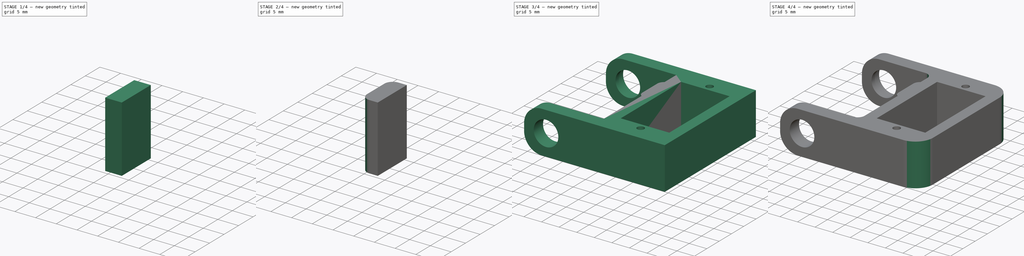
[diagram: build sequence overview — one tinted view per stage of 4, left to right]
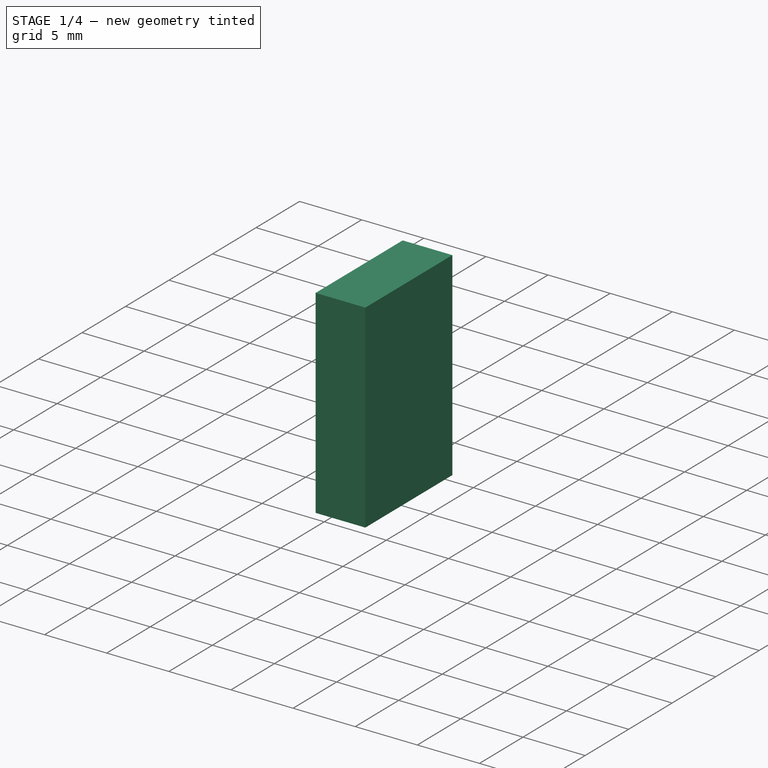
[diagram: stage 1 of 4 — iso view after this stage's code; geometry added in this stage tinted green]
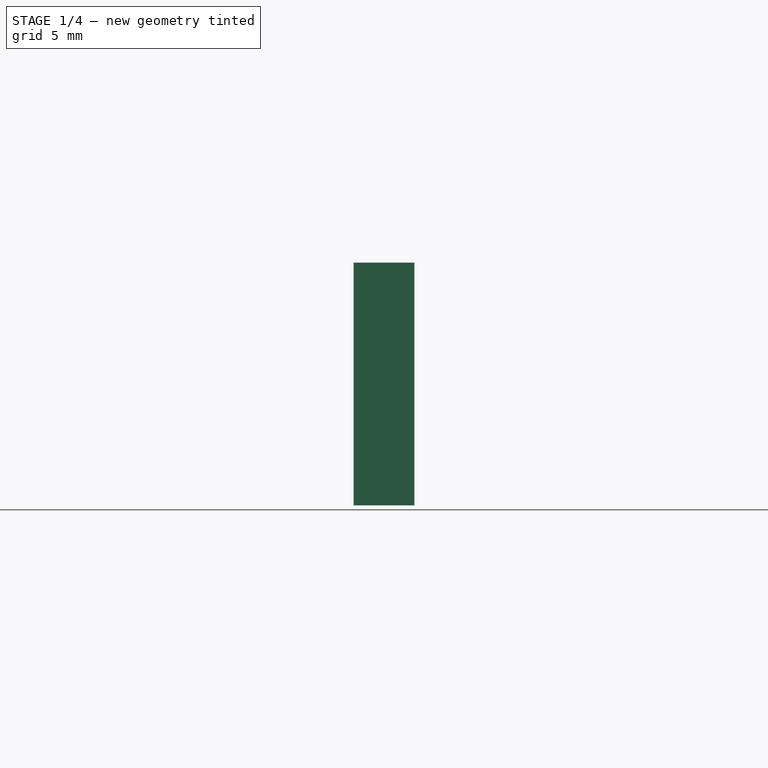
[diagram: stage 1 of 4 — front view after this stage's code; geometry added in this stage tinted green]
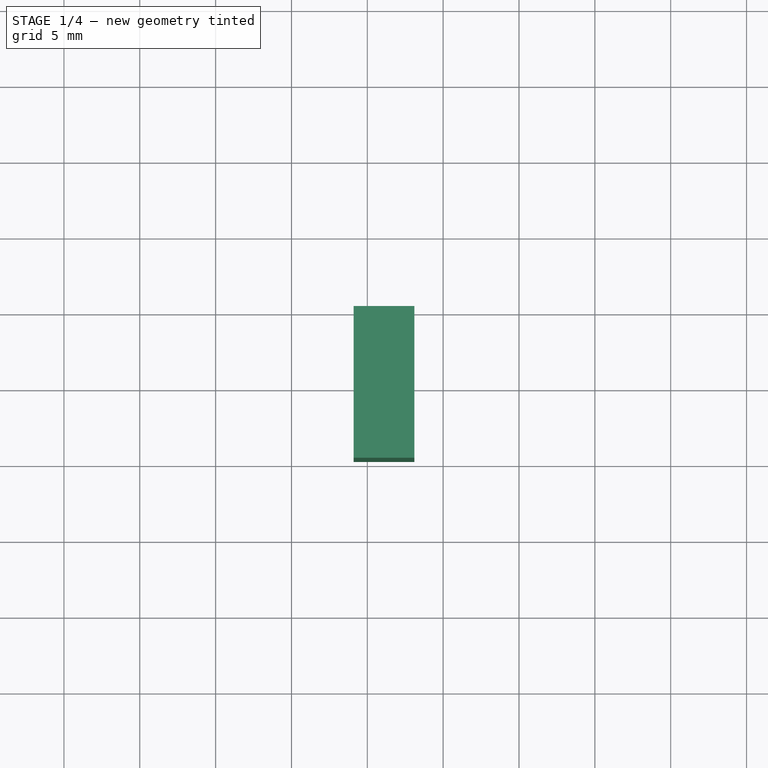
[diagram: stage 1 of 4 — top view after this stage's code; geometry added in this stage tinted green]
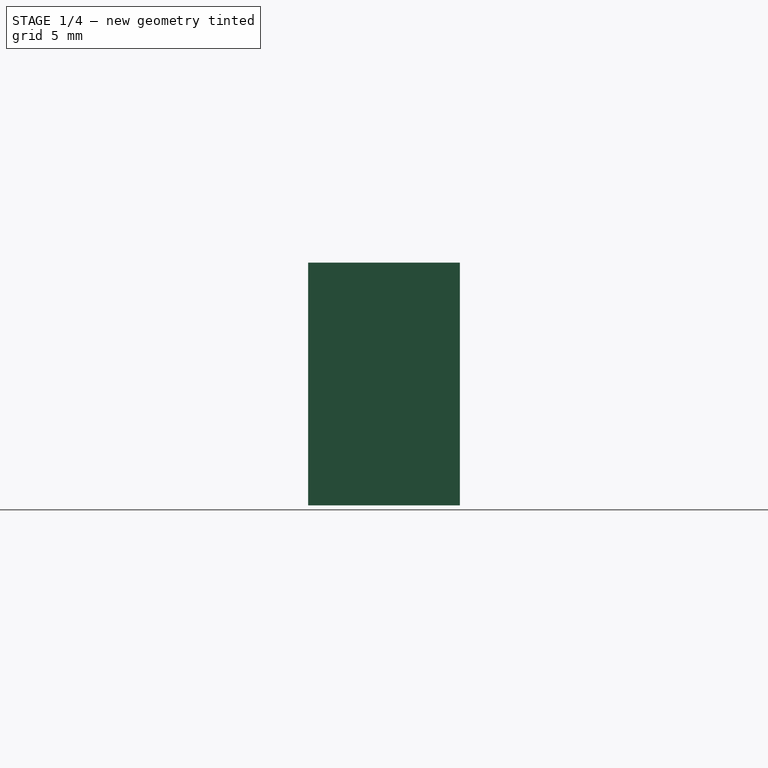
[diagram: stage 1 of 4 — right view after this stage's code; geometry added in this stage tinted green]
FCSTD DOCUMENT  (FreeCAD 0.21R33668 +26 (Git))
Label: pata-coxa
License: All rights reserved
LicenseURL: http://en.wikipedia.org/wiki/All_rights_reserved
objects: Part::Fillet×4, Sketcher::SketchObject×3, PartDesign::Pocket×2, Part::Cylinder×2, Part::Cut×2, PartDesign::Pad×1, PartDesign::Body×1, Part::Box×1, Part::MultiFuse×1, App::DocumentObjectGroup×1
note: 20 computed .brp shape members not serialized (recipe doc carries the construction recipe); baked Part::Feature solids carry a one-line shape summary decoded from their .brp

FEATURE [PartDesign::Body] Body
  Group = -> [Sketch,Pad,Sketch001,Pocket,Sketch002,Pocket001]
  Origin = -> Origin
  Tip = -> Pocket001
FEATURE [Part::Box] Box004  label="soporte-para-articulacion"
  AttacherType = Attacher::AttachEngine3D
  Height = 16
  Length = 4
  Placement = pos=(-10.9,0.3,-4) rot=(0,0,1;0rad)
  Width = 10
FEATURE [Part::Cylinder] Cylinder013  label="taladro-union-1"
  Angle = 360
  AttacherType = Attacher::AttachEngine3D
  FirstAngle = 0
  Height = 10
  Placement = pos=(-8.6,2.75,-7.9) rot=(0,0,1;0rad)
  Radius = 1
  SecondAngle = 0
FEATURE [Part::Cut] Cut003
  Base = -> Box004
  Tool = -> Cylinder013
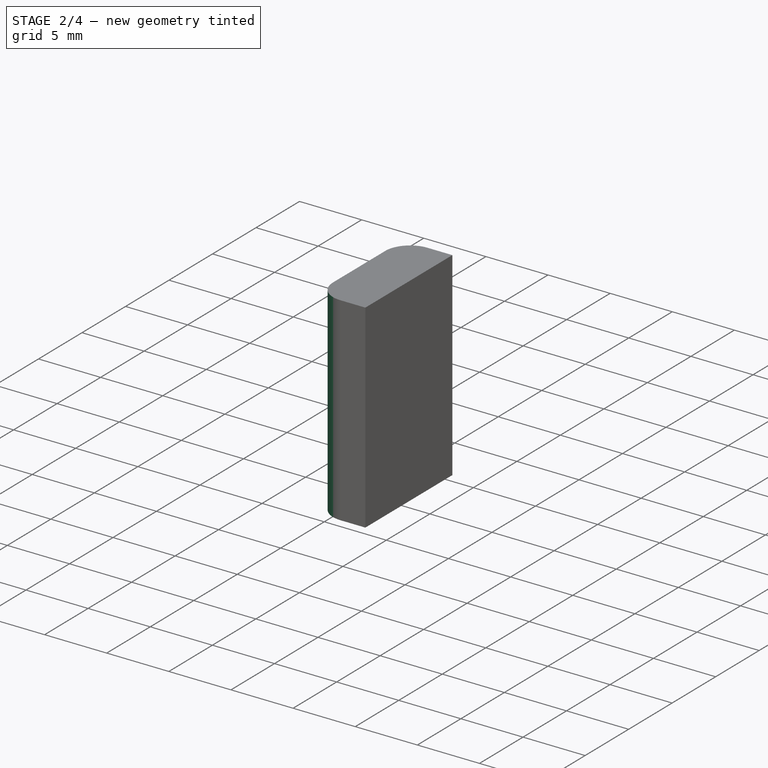
[diagram: stage 2 of 4 — iso view after this stage's code; geometry added in this stage tinted green]
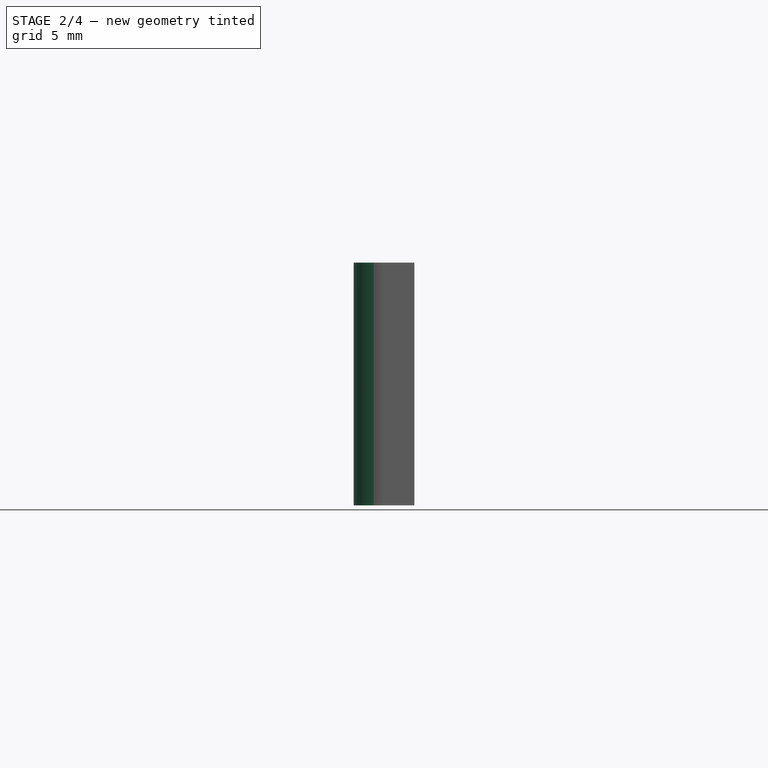
[diagram: stage 2 of 4 — front view after this stage's code; geometry added in this stage tinted green]
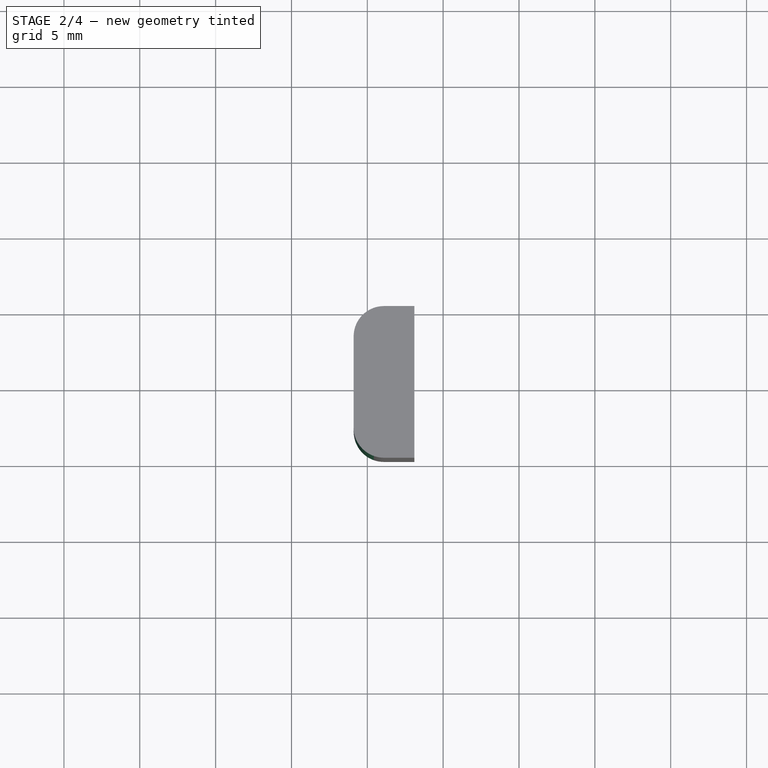
[diagram: stage 2 of 4 — top view after this stage's code; geometry added in this stage tinted green]
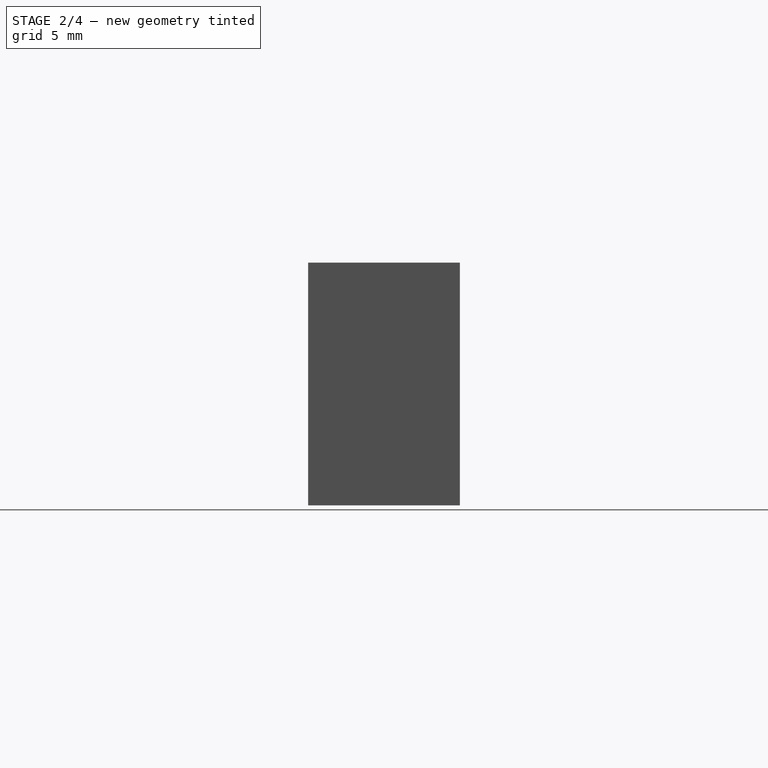
[diagram: stage 2 of 4 — right view after this stage's code; geometry added in this stage tinted green]
FEATURE [Part::Cylinder] Cylinder014  label="taladro-union-2"
  Angle = 360
  AttacherType = Attacher::AttachEngine3D
  FirstAngle = 0
  Height = 10
  Placement = pos=(-8.6,7.75,-7.9) rot=(0,0,1;0rad)
  Radius = 1
  SecondAngle = 0
FEATURE [Part::Cut] Cut004
  Base = -> Cut003
  Tool = -> Cylinder014
FEATURE [Part::Fillet] Fillet003
  Base = -> Cut004
  Edges = 2 edges r=2: [Edge1,Edge3]
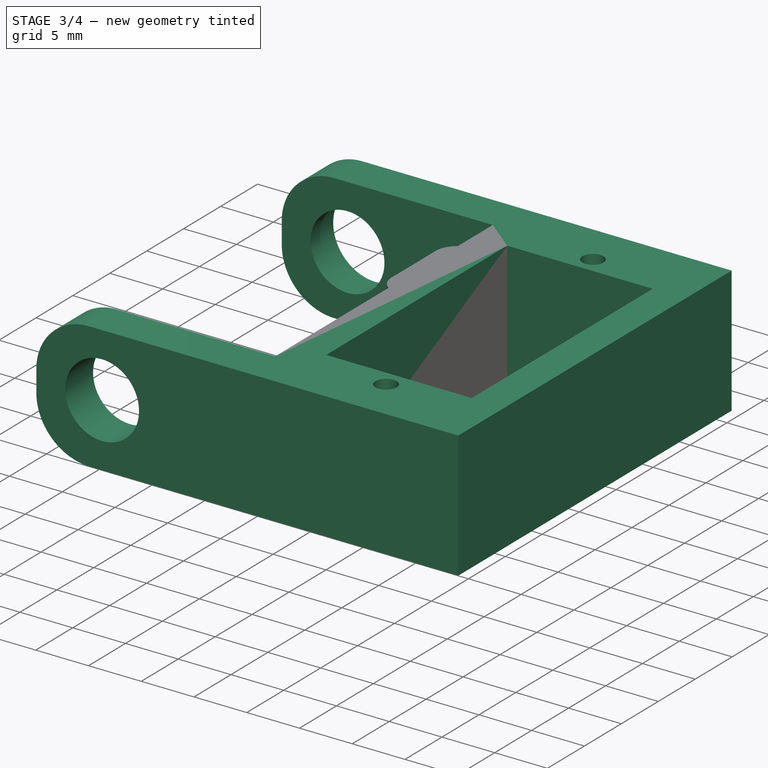
[diagram: stage 3 of 4 — iso view after this stage's code; geometry added in this stage tinted green]
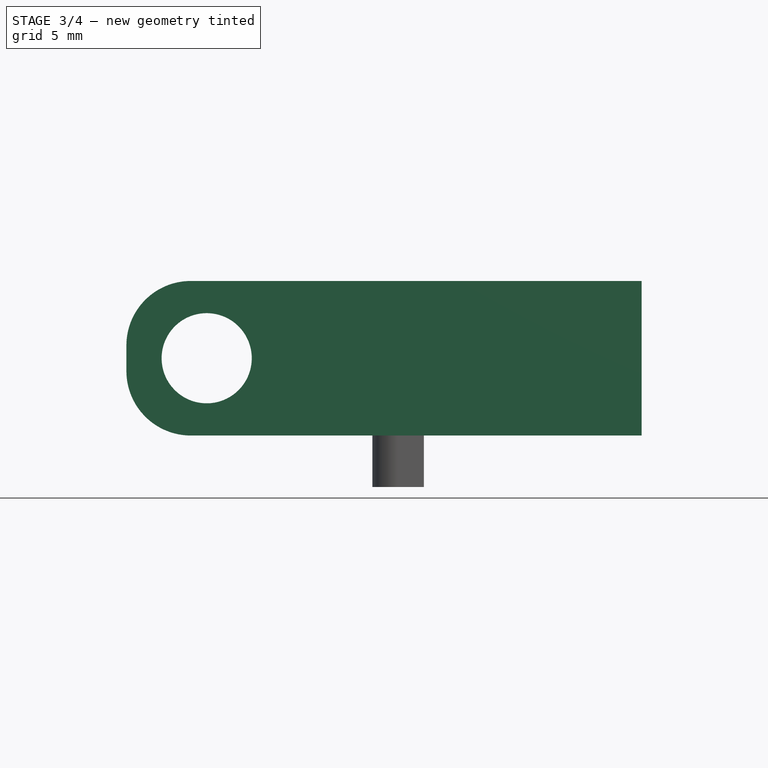
[diagram: stage 3 of 4 — front view after this stage's code; geometry added in this stage tinted green]
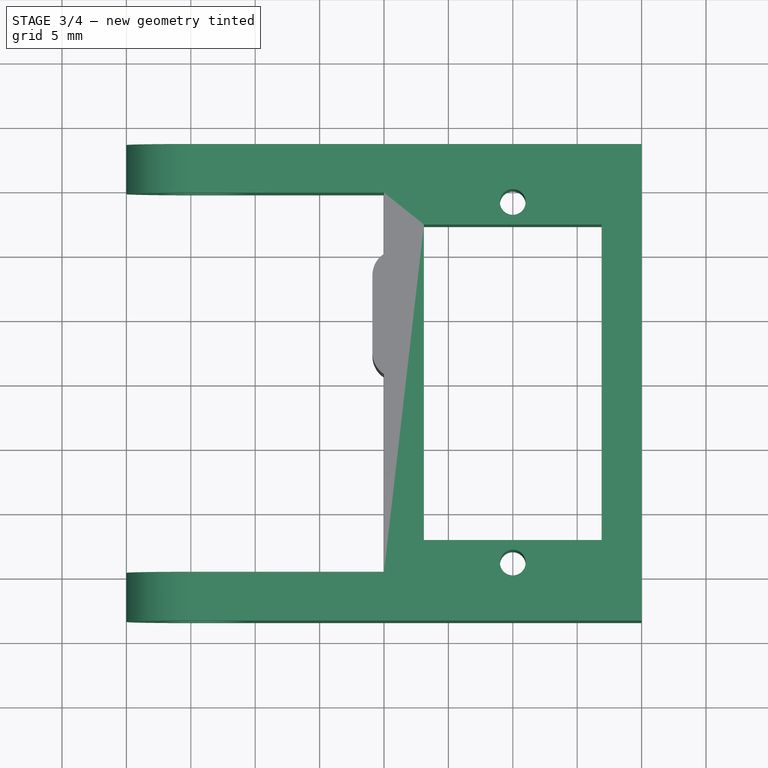
[diagram: stage 3 of 4 — top view after this stage's code; geometry added in this stage tinted green]
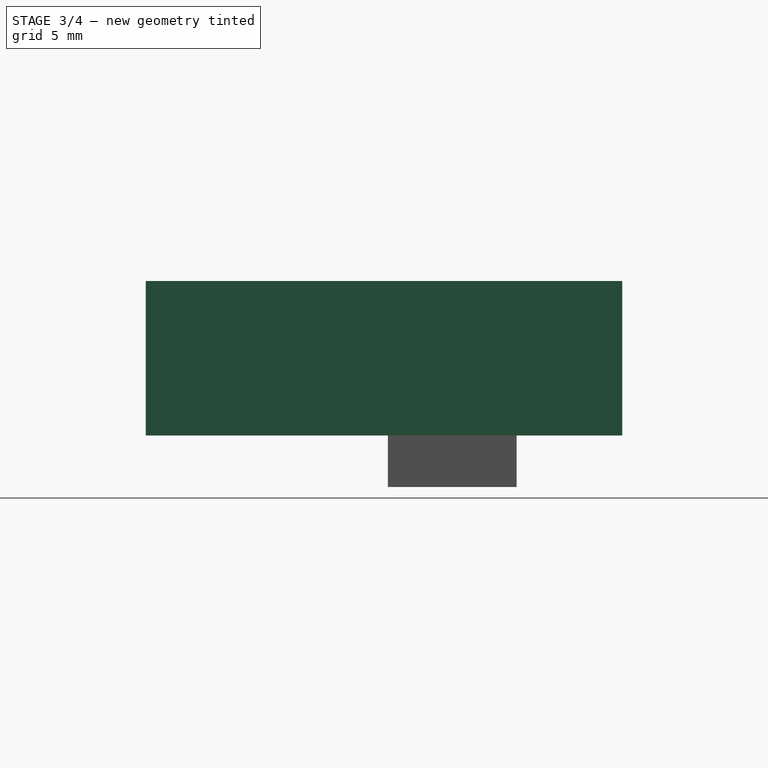
[diagram: stage 3 of 4 — right view after this stage's code; geometry added in this stage tinted green]
FEATURE [Sketcher::SketchObject] Sketch
  FullyConstrained = false
  MapMode = 5
  Support = -> [XY_Plane]
  sketch-geometry (14):
    g0: LineSegment StartX=-30 StartY=18.5 StartZ=0 EndX=10 EndY=18.5 EndZ=0
    g1: LineSegment StartX=10 StartY=18.5 StartZ=0 EndX=10 EndY=-18.5 EndZ=0
    g2: LineSegment StartX=-6.9 StartY=12.25 StartZ=0 EndX=-6.9 EndY=-12.25 EndZ=0
    g3: LineSegment StartX=-6.9 StartY=-12.25 StartZ=0 EndX=6.9 EndY=-12.25 EndZ=0
    g4: LineSegment StartX=6.9 StartY=-12.25 StartZ=0 EndX=6.9 EndY=12.25 EndZ=0
    g5: LineSegment StartX=6.9 StartY=12.25 StartZ=0 EndX=-6.9 EndY=12.25 EndZ=0
    g6: Circle CenterX=0 CenterY=-14 CenterZ=0 NormalX=0 NormalY=0 NormalZ=1 AngleXU=0 Radius=1
    g7: Circle CenterX=0 CenterY=14 CenterZ=0 NormalX=0 NormalY=0 NormalZ=1 AngleXU=0 Radius=1
    g8: LineSegment StartX=-30 StartY=18.5 StartZ=0 EndX=-30 EndY=14.7197 EndZ=0
    g9: LineSegment StartX=-30 StartY=14.7197 StartZ=0 EndX=-10 EndY=14.7197 EndZ=0
    g10: LineSegment StartX=-10 StartY=14.7197 StartZ=0 EndX=-10 EndY=-14.7197 EndZ=0
    g11: LineSegment StartX=-10 StartY=-14.7197 StartZ=0 EndX=-30 EndY=-14.7197 EndZ=0
    g12: LineSegment StartX=-30 StartY=-14.7197 StartZ=0 EndX=-30 EndY=-18.5 EndZ=0
    g13: LineSegment StartX=-30 StartY=-18.5 StartZ=0 EndX=10 EndY=-18.5 EndZ=0
  constraints (34):
    c: Horizontal(g0)
    c: Coincident(g0,g1)
    c: Vertical(g2)
    c: Coincident(g2,g3)
    c: Horizontal(g3)
    c: Coincident(g3,g4)
    c: Vertical(g4)
    c: Coincident(g4,g5)
    c: Coincident(g5,g2)
    c: Horizontal(g5)
    c: Distance(g5) = 13.8
    c: Distance(g4) = 24.5
    c: Symmetric(g3,g2,g-1)
    c: Distance(g6,g3) = 1.75
    c: PointOnObject(g7,g-2)
    c: Distance(g7,g5) = 1.75
    c: Diameter(g7) = 2
    c: Diameter(g6) = 2
    c: Coincident(g0,g8)
    c: Vertical(g8)
    c: Coincident(g8,g9)
    c: Horizontal(g9)
    c: Coincident(g9,g10)
    c: Coincident(g10,g11)
    c: Coincident(g11,g12)
    c: Distance(g9) = 20
    c: Distance(g0) = 40
    c: Coincident(g12,g13)
    c: Coincident(g13,g1)
    c: Symmetric(g0,g1,g-1)
    c: Symmetric(g9,g10,g-1)
    c: Symmetric(g8,g11,g-1)
    c: Symmetric(g0,g12,g-1)
    c: Distance(g1) = 37
FEATURE [PartDesign::Pad] Pad
  Direction = (1,1,1)
  Length = 12
  Length2 = 100
  Profile = -> Sketch
  Refine = true
  Type = 0
FEATURE [Sketcher::SketchObject] Sketch001
  FullyConstrained = false
  MapMode = 5
  Placement = pos=(0,18.5,0) rot=(0,0.707107,0.707107;3.14159rad)
  Support = -> [Pad]
  sketch-geometry (1):
    g0: Circle CenterX=23.7667 CenterY=6 CenterZ=0 NormalX=0 NormalY=0 NormalZ=1 AngleXU=0 Radius=3.5
  constraints (2):
    c: DistanceY(g-1,g0) = 6
    c: Diameter(g0) = 7
FEATURE [Sketcher::SketchObject] Sketch002
  AttachmentOffset = pos=(0,0,-19) rot=(0,0,1;0rad)
  FullyConstrained = false
  MapMode = 5
  Placement = pos=(0,19,4.2e-15) rot=(1,0,0;1.5708rad)
  Support = -> [XZ_Plane]
  sketch-geometry (4):
    g0: LineSegment StartX=-23.2371 StartY=9.96465 StartZ=0 EndX=-8.50015 EndY=7.97962 EndZ=0
    g1: LineSegment StartX=-23.2424 StartY=2.03465 StartZ=0 EndX=-8.50544 EndY=4.01962 EndZ=0
    g2: ArcOfCircle CenterX=-23.7677 CenterY=6 CenterZ=0 NormalX=0 NormalY=0 NormalZ=1 AngleXU=0 Radius=4 StartAngle=1.43774 EndAngle=4.84411
    g3: ArcOfCircle CenterX=-8.78493 CenterY=6 CenterZ=0 NormalX=0 NormalY=0 NormalZ=1 AngleXU=0 Radius=2 StartAngle=4.85259 EndAngle=7.71111
  constraints (12):
    c: Coincident(g2,g0)
    c: Coincident(g2,g1)
    c: Coincident(g3,g0)
    c: Coincident(g3,g1)
    c: Distance(g0) = 14.87
    c: Equal(g0,g1)
    c: Diameter(g2) = 8
    c: Diameter(g3) = 4
    c: Distance(g0,g1) = 7.93
    c: Distance(g0,g1) = 3.96
    c: DistanceY(g-1,g3) = 6
    c: DistanceY(g-1,g2) = 6
FEATURE [PartDesign::Pocket] Pocket
  BaseFeature = -> Pad
  Direction = (1,1,1)
  Length = 5
  Length2 = 100
  Profile = -> Sketch001
  Refine = true
  Type = 1
FEATURE [PartDesign::Pocket] Pocket001
  BaseFeature = -> Pocket
  Direction = (1,1,1)
  Length = 3
  Length2 = 100
  Profile = -> Sketch002
  Reversed = true
  Type = 0
FEATURE [Part::Fillet] Fillet
  Base = -> Pocket001
  Edges = 4 edges r=5: [Edge3,Edge4,Edge18,Edge29]
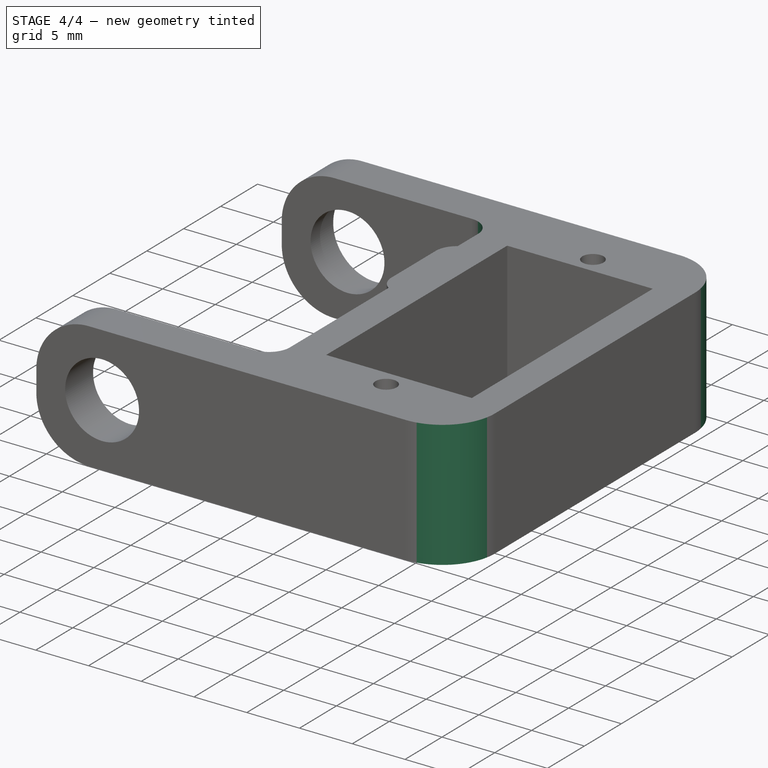
[diagram: stage 4 of 4 — iso view after this stage's code; geometry added in this stage tinted green]
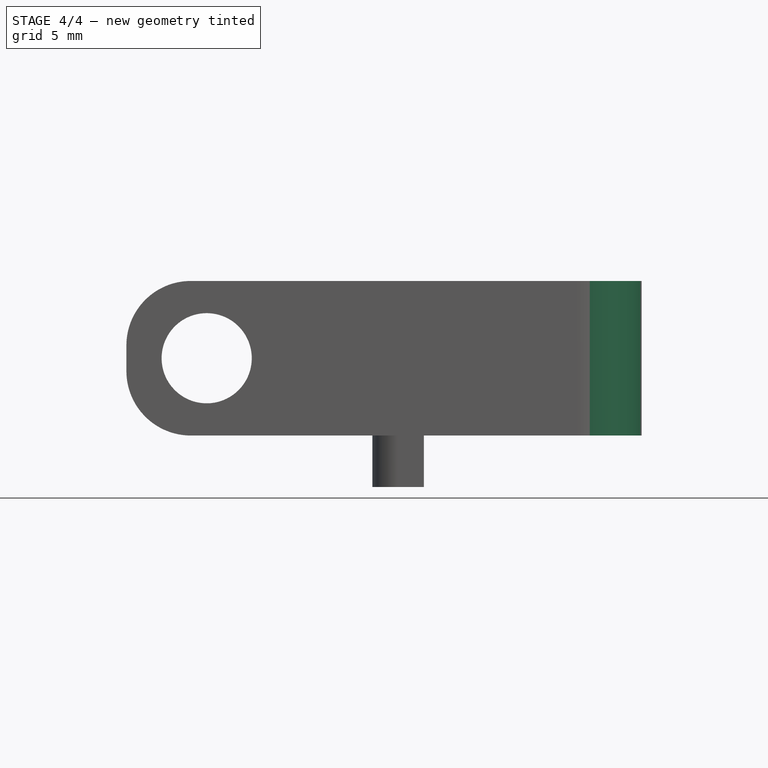
[diagram: stage 4 of 4 — front view after this stage's code; geometry added in this stage tinted green]
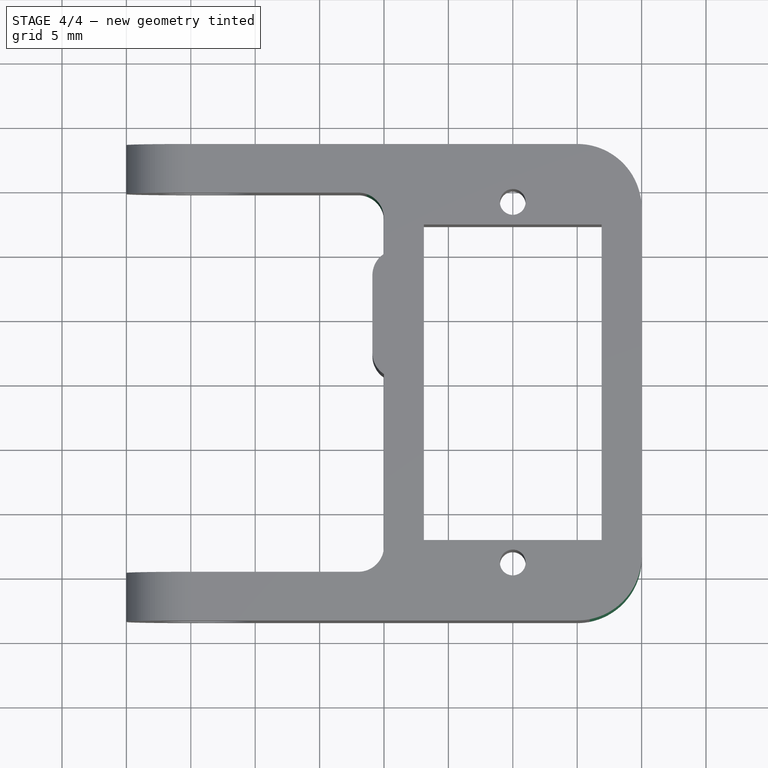
[diagram: stage 4 of 4 — top view after this stage's code; geometry added in this stage tinted green]
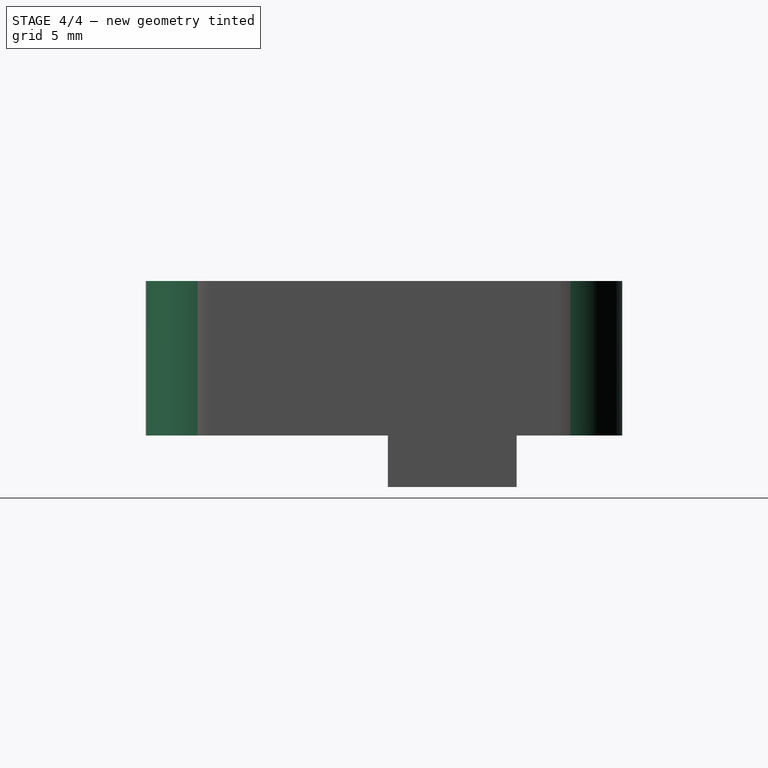
[diagram: stage 4 of 4 — right view after this stage's code; geometry added in this stage tinted green]
FEATURE [Part::Fillet] Fillet001
  Base = -> Fillet
  Edges = 2 edges r=2: [Edge19,Edge53]
FEATURE [Part::Fillet] Fillet002
  Base = -> Fillet001
  Edges = 2 edges r=5: [Edge55,Edge58]
FEATURE [Part::MultiFuse] Fusion006  label="version-final"
  Refine = true
  Shapes = -> [Fillet002,Fillet003]
FEATURE [App::DocumentObjectGroup] Group  label="pata-coxa-pieza"
  Group = -> [Body,Fusion006]
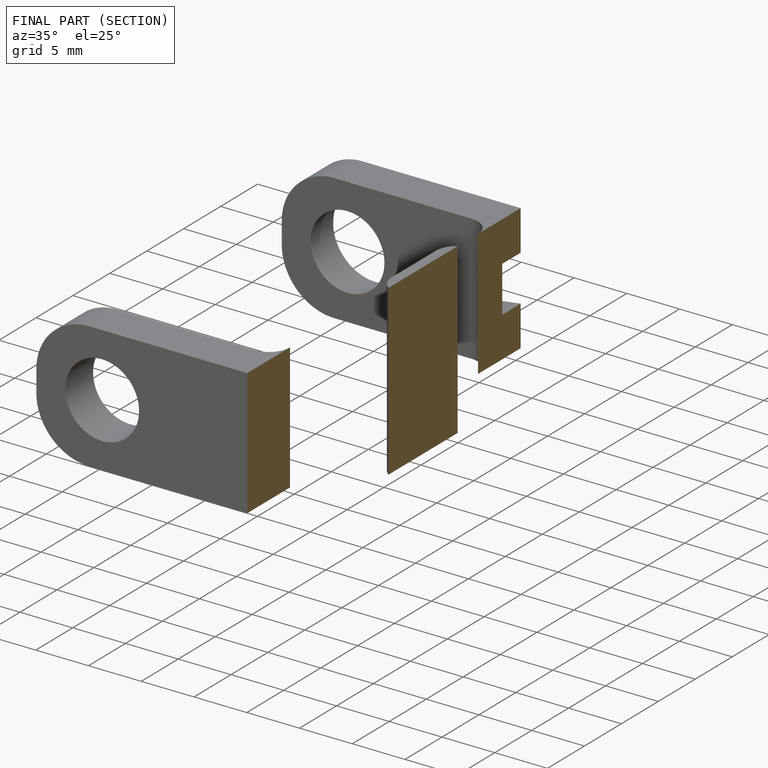
[diagram: finished part — half-section view (interior)]
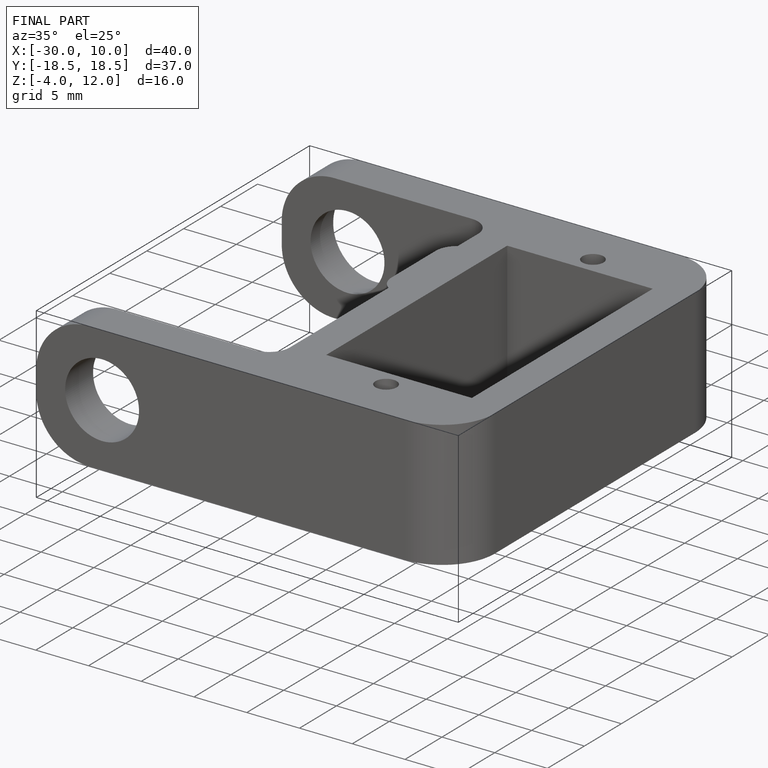
[diagram: finished part — iso view with bounding-box wireframe]
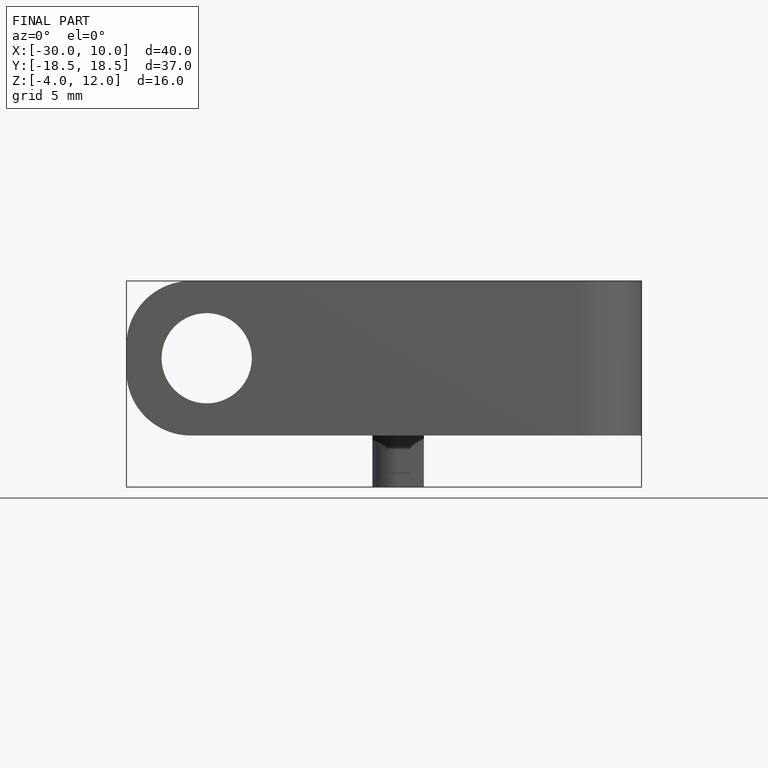
[diagram: finished part — front view with bounding-box wireframe]
